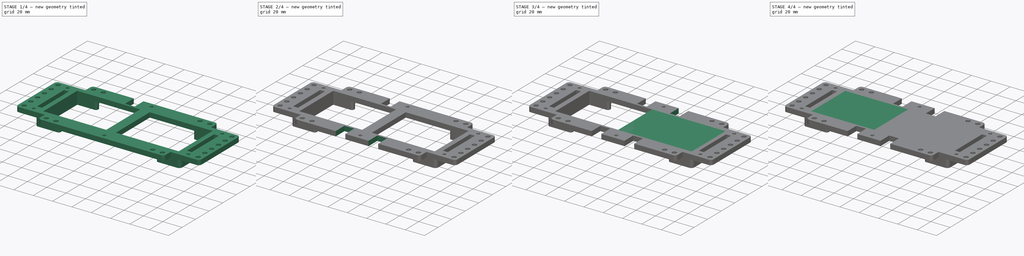
[diagram: build sequence overview — one tinted view per stage of 4, left to right]
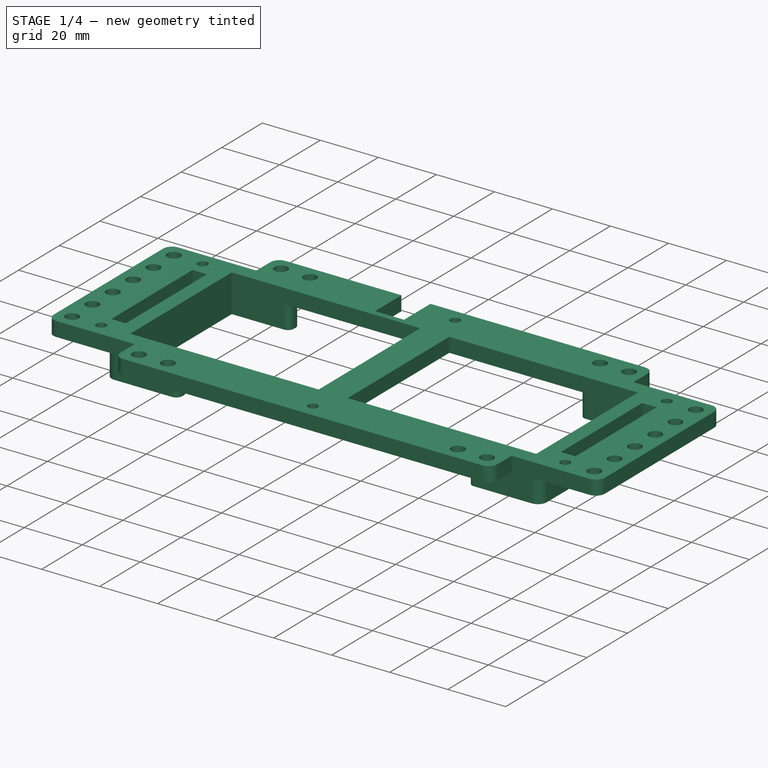
[diagram: stage 1 of 4 — iso view after this stage's code; geometry added in this stage tinted green]
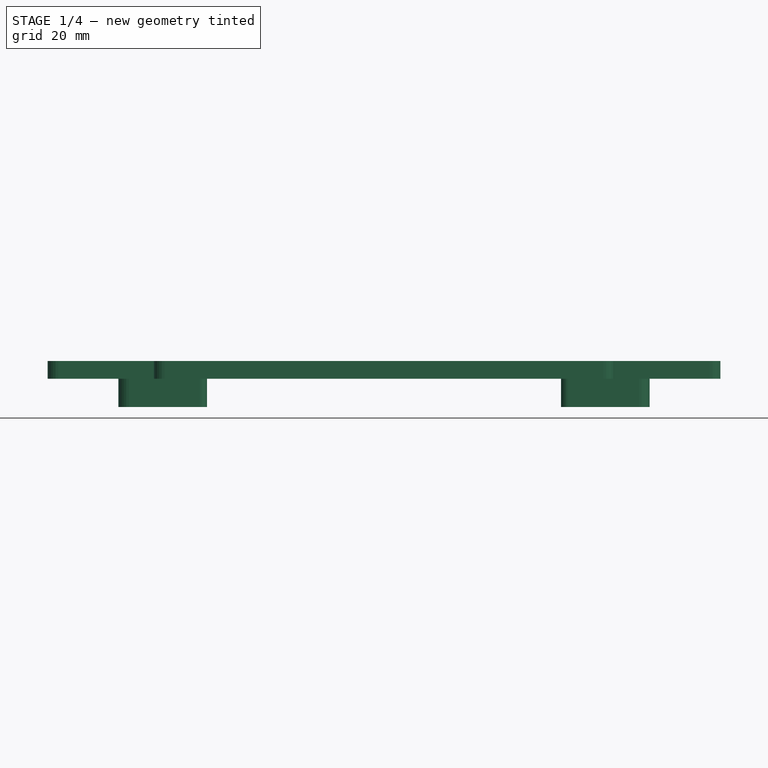
[diagram: stage 1 of 4 — front view after this stage's code; geometry added in this stage tinted green]
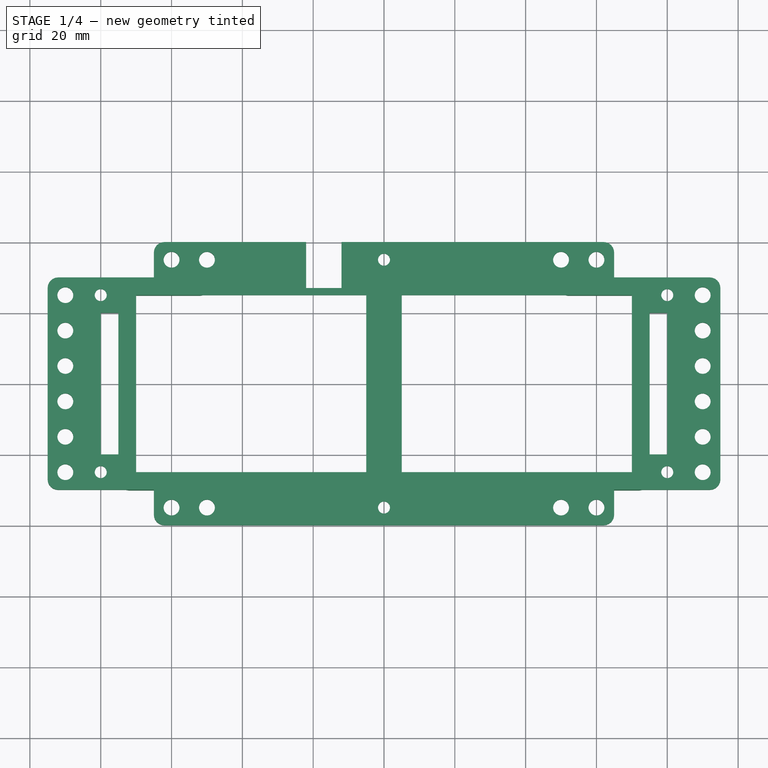
[diagram: stage 1 of 4 — top view after this stage's code; geometry added in this stage tinted green]
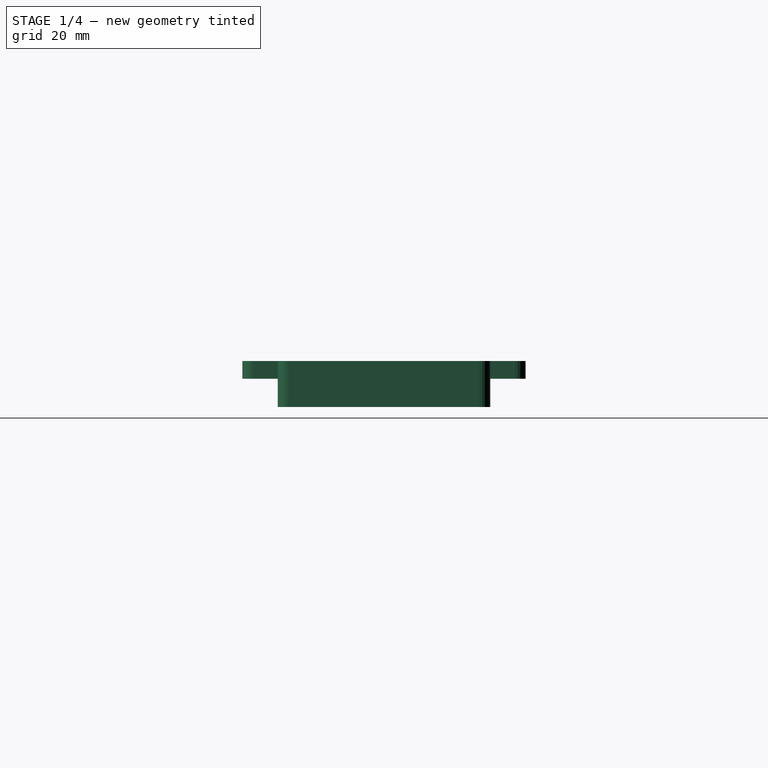
[diagram: stage 1 of 4 — right view after this stage's code; geometry added in this stage tinted green]
FCSTD DOCUMENT  (FreeCAD 1.0R39319 (Git))
Label: BaseFrame - edit
License: All rights reserved
LicenseURL: https://en.wikipedia.org/wiki/All_rights_reserved
objects: Part::Extrusion×4, Measure::MeasureLength×4, Sketcher::SketchObject×3, PartDesign::Pocket×2, PartDesign::LinearPattern×2, Part::Feature×1, PartDesign::FeatureBase×1, PartDesign::Body×1, App::DocumentObjectGroup×1
note: 24 computed .brp shape members not serialized (recipe doc carries the construction recipe); baked Part::Feature solids carry a one-line shape summary decoded from their .brp

FEATURE [PartDesign::FeatureBase] BaseFeature
  BaseFeature = -> ProtoTank_baseFrame002_solid
  Suppressed = false
FEATURE [Sketcher::SketchObject] Sketch002
  ArcFitTolerance = 1e-06
  AttachmentSupport = -> [BaseFeature]
  FullyConstrained = true
  MakeInternals = false
  MapMode = 5
  Placement = pos=(0,40,0) rot=(0,0.707107,0.707107;3.14159rad)
  sketch-geometry (8):
    g0: LineSegment [constr] StartX=0 StartY=0 StartZ=0 EndX=12 EndY=0 EndZ=0
    g1: LineSegment [constr] StartX=12 StartY=0 StartZ=0 EndX=12 EndY=5 EndZ=0
    g2: LineSegment [constr] StartX=12 StartY=5 StartZ=0 EndX=0 EndY=5 EndZ=0
    g3: LineSegment [constr] StartX=0 StartY=5 StartZ=0 EndX=0 EndY=0 EndZ=0
    g4: LineSegment StartX=12 StartY=0 StartZ=0 EndX=22 EndY=0 EndZ=0
    g5: LineSegment StartX=22 StartY=0 StartZ=0 EndX=22 EndY=5 EndZ=0
    g6: LineSegment StartX=22 StartY=5 StartZ=0 EndX=12 EndY=5 EndZ=0
    g7: LineSegment StartX=12 StartY=5 StartZ=0 EndX=12 EndY=0 EndZ=0
  constraints (22):
    c: Coincident(g0,g1)
    c: Coincident(g1,g2)
    c: Coincident(g2,g3)
    c: Coincident(g3,g0)
    c: Horizontal(g0)
    c: Horizontal(g2)
    c: Vertical(g1)
    c: Vertical(g3)
    c: Distance(g1,g3) = 12
    c: Distance(g0,g2) = 5
    c: Coincident(g0,g-1)
    c: Coincident(g4,g5)
    c: Coincident(g5,g6)
    c: Coincident(g6,g7)
    c: Coincident(g7,g4)
    c: Horizontal(g4)
    c: Horizontal(g6)
    c: Vertical(g5)
    c: Vertical(g7)
    c: Distance(g5,g7) = 10
    c: Distance(g4,g6) = 5
    c: Coincident(g4,g0)
FEATURE [PartDesign::Pocket] Pocket
  BaseFeature = -> BaseFeature
  Direction = (0,-1,2e-16)
  Length = 13
  Length2 = 5
  Profile = -> Sketch002
  ReferenceAxis = -> Sketch002 [N_Axis]
  Refine = true
  Suppressed = false
  Type = 0
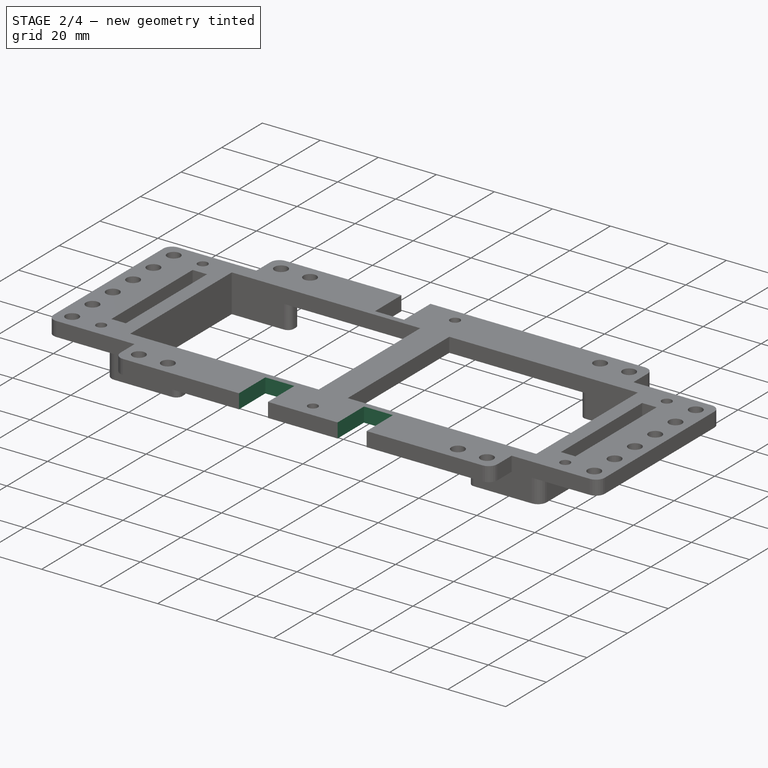
[diagram: stage 2 of 4 — iso view after this stage's code; geometry added in this stage tinted green]
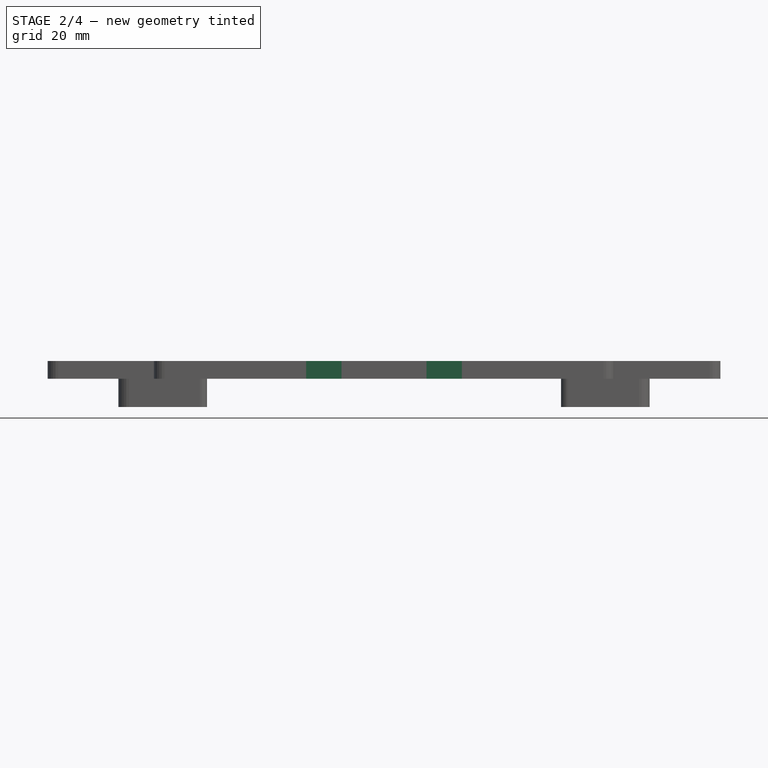
[diagram: stage 2 of 4 — front view after this stage's code; geometry added in this stage tinted green]
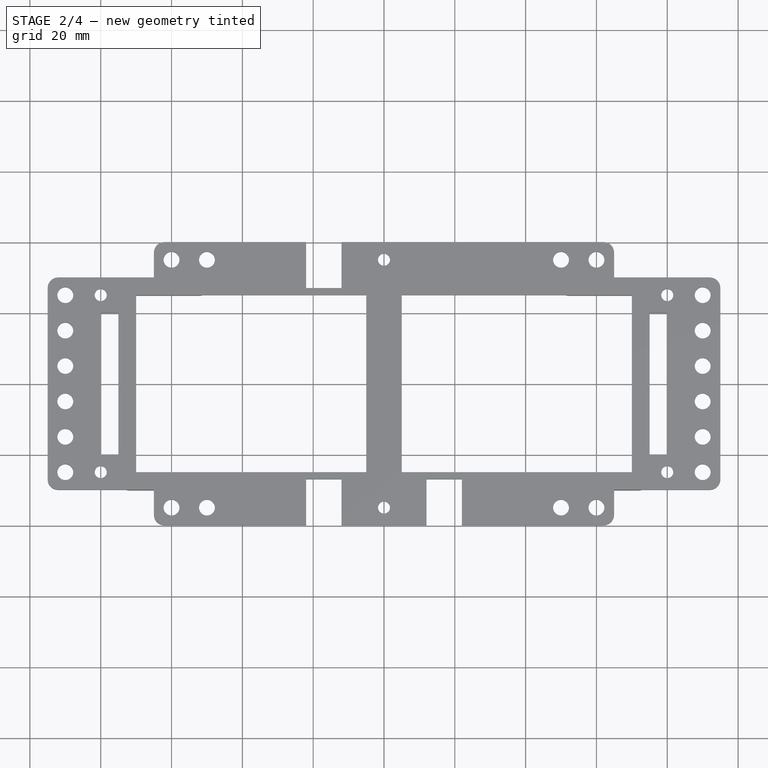
[diagram: stage 2 of 4 — top view after this stage's code; geometry added in this stage tinted green]
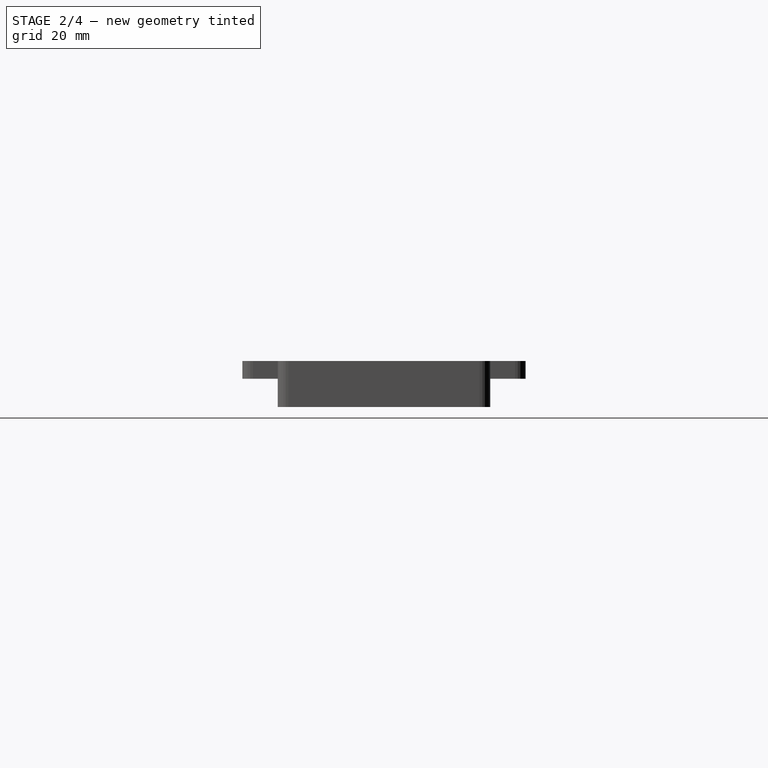
[diagram: stage 2 of 4 — right view after this stage's code; geometry added in this stage tinted green]
FEATURE [PartDesign::Pocket] Pocket001
  BaseFeature = -> Pocket
  Direction = (0,1,-2e-16)
  Length = 13
  Length2 = 5
  Profile = -> Sketch
  ReferenceAxis = -> Sketch [N_Axis]
  Refine = true
  Suppressed = false
  Type = 0
FEATURE [PartDesign::LinearPattern] LinearPattern
  BaseFeature = -> Pocket001
  Direction = -> X_Axis
  Length = 34
  Mode = 0
  Occurrences = 2
  Offset = 34
  Originals = -> [Pocket001]
  Refine = true
  Suppressed = false
  TransformMode = 0
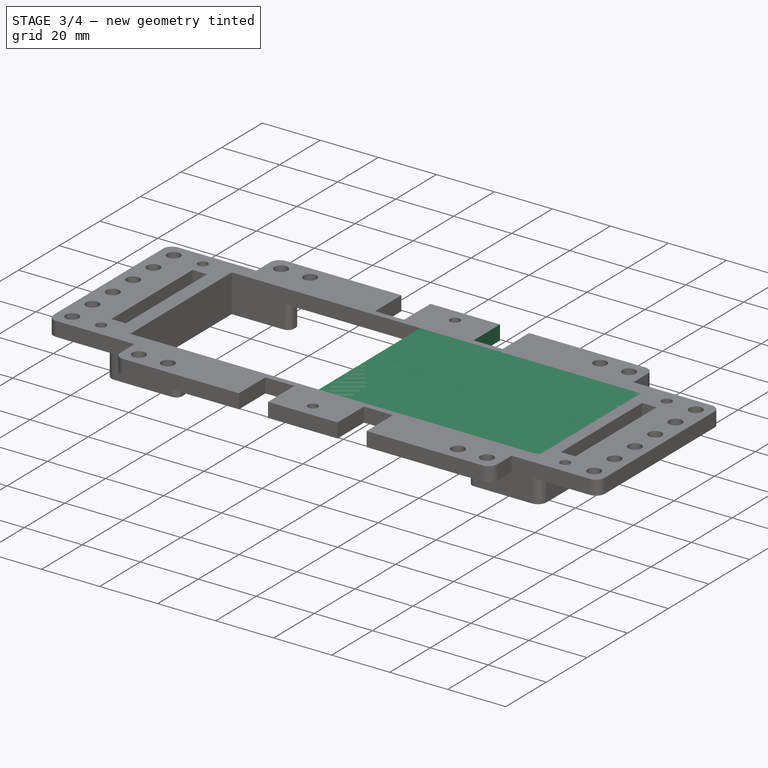
[diagram: stage 3 of 4 — iso view after this stage's code; geometry added in this stage tinted green]
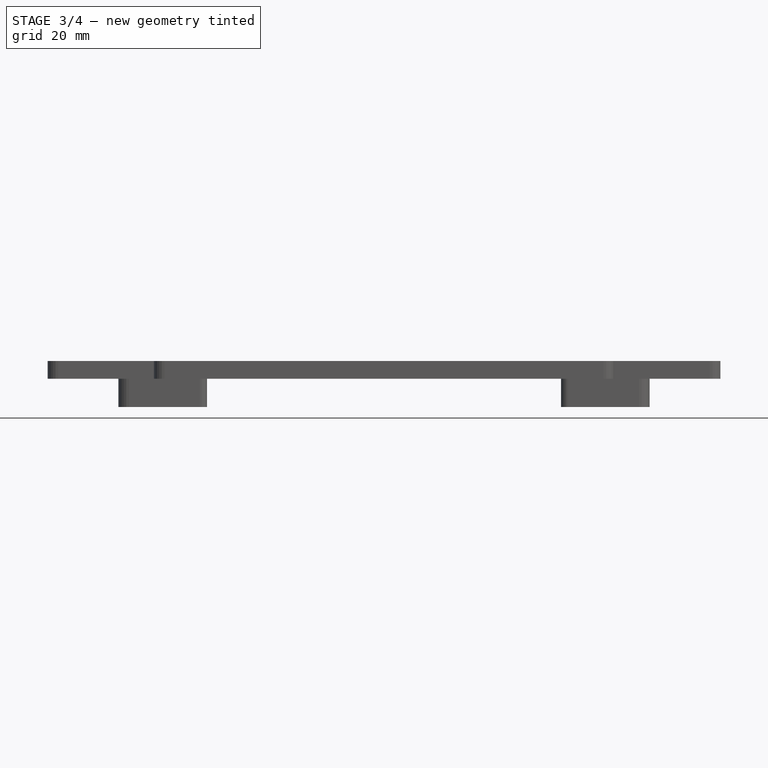
[diagram: stage 3 of 4 — front view after this stage's code; geometry added in this stage tinted green]
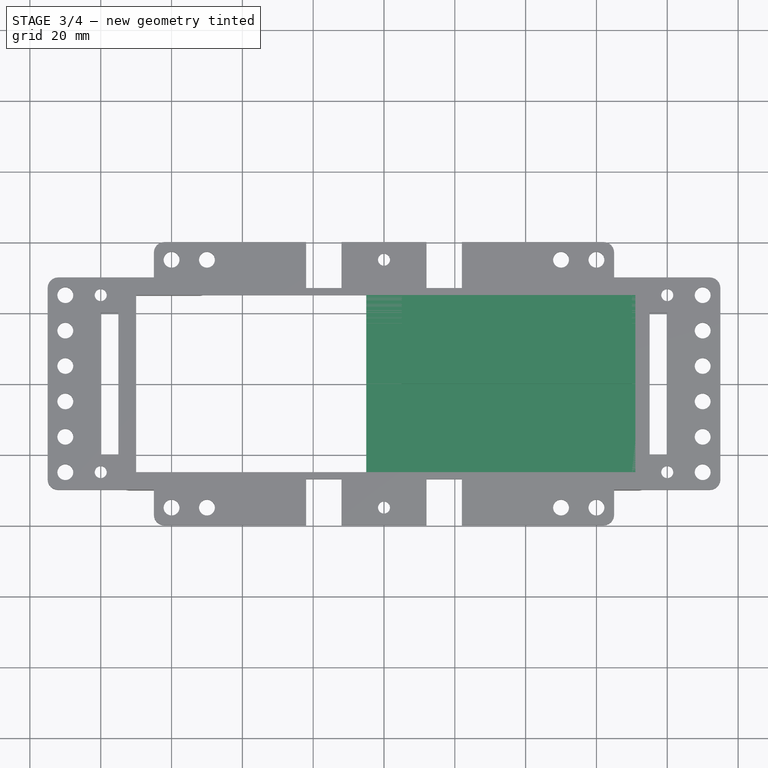
[diagram: stage 3 of 4 — top view after this stage's code; geometry added in this stage tinted green]
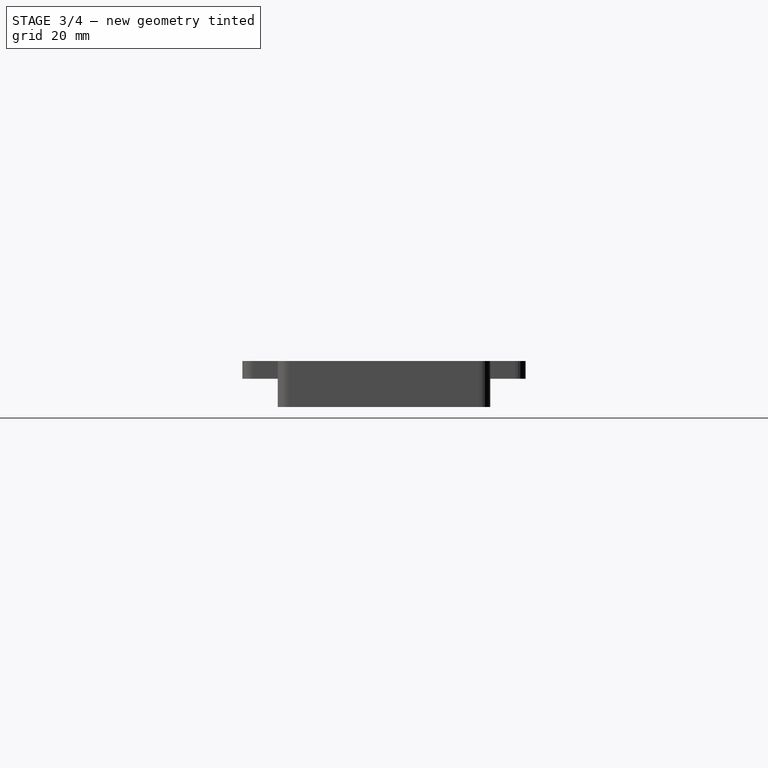
[diagram: stage 3 of 4 — right view after this stage's code; geometry added in this stage tinted green]
FEATURE [Part::Extrusion] Extrude002
  Base = -> Sketch001
  Dir = (-1,0,0)
  DirMode = 2
  FaceMakerClass = Part::FaceMakerBullseye
  FaceMakerMode = 3
  LengthFwd = 0
  LengthRev = 76
  Solid = true
  Symmetric = false
FEATURE [Part::Extrusion] Extrude003
  Base = -> Sketch001
  Dir = (-1,0,0)
  DirMode = 2
  FaceMakerClass = Part::FaceMakerBullseye
  FaceMakerMode = 3
  LengthFwd = 0
  LengthRev = 76
  Solid = true
  Symmetric = false
FEATURE [PartDesign::LinearPattern] LinearPattern001
  BaseFeature = -> LinearPattern
  Direction = -> X_Axis
  Length = 34
  Mode = 0
  Occurrences = 2
  Offset = 34
  Originals = -> [Pocket]
  Refine = true
  Suppressed = false
  TransformMode = 0
FEATURE [PartDesign::Body] Body
  AllowCompound = false
  BaseFeature = -> ProtoTank_baseFrame002_solid
  Group = -> [BaseFeature,Sketch,Sketch002,Pocket,Pocket001,LinearPattern,LinearPattern001]
  Origin = -> Origin
  Tip = -> LinearPattern001
FEATURE [Measure::MeasureLength] Length  label="Length: 24,00 mm"
  Elements = -> [Body]
  Length = 24
FEATURE [Measure::MeasureLength] Length001  label="Length001: 10,00 mm"
  Elements = -> [Body]
  Length = 10
FEATURE [Measure::MeasureLength] Length002  label="Length002: 24,00 mm"
  Elements = -> [Body]
  Length = 24
FEATURE [Measure::MeasureLength] Length003  label="Length003: 10,00 mm"
  Elements = -> [Body]
  Length = 10
FEATURE [App::DocumentObjectGroup] Measurements
  Group = -> [Length,Length001,Length002,Length003]
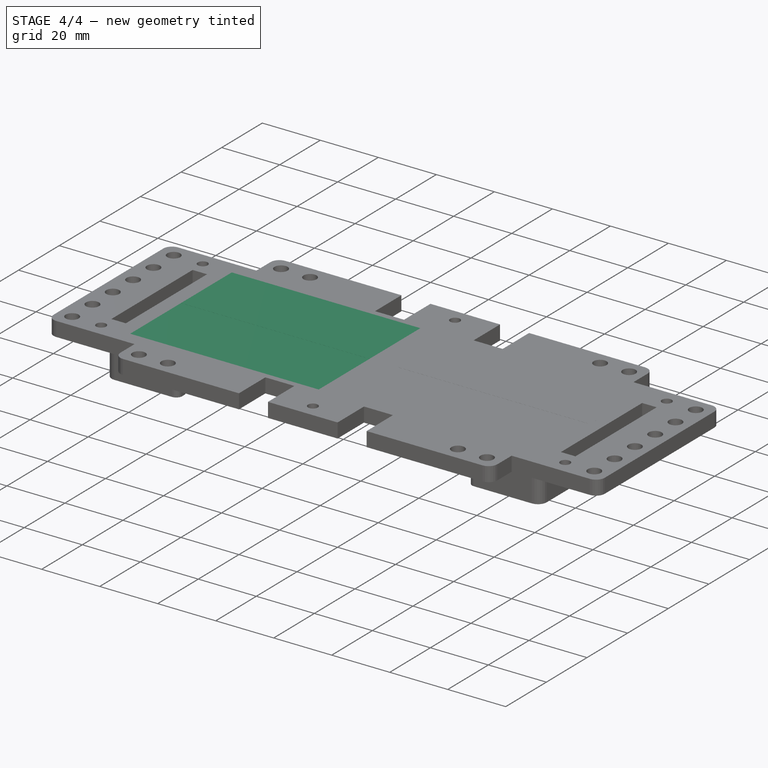
[diagram: stage 4 of 4 — iso view after this stage's code; geometry added in this stage tinted green]
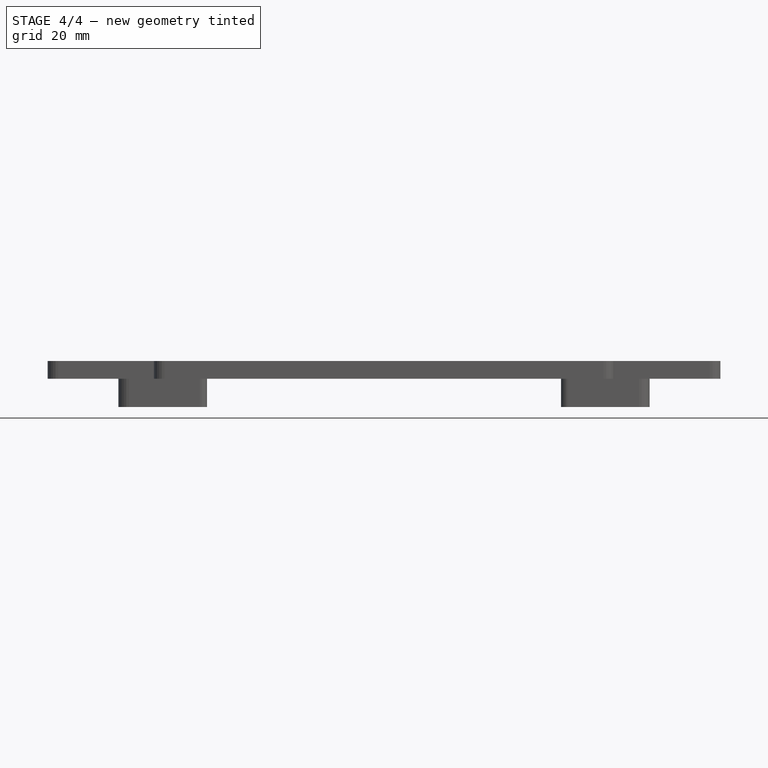
[diagram: stage 4 of 4 — front view after this stage's code; geometry added in this stage tinted green]
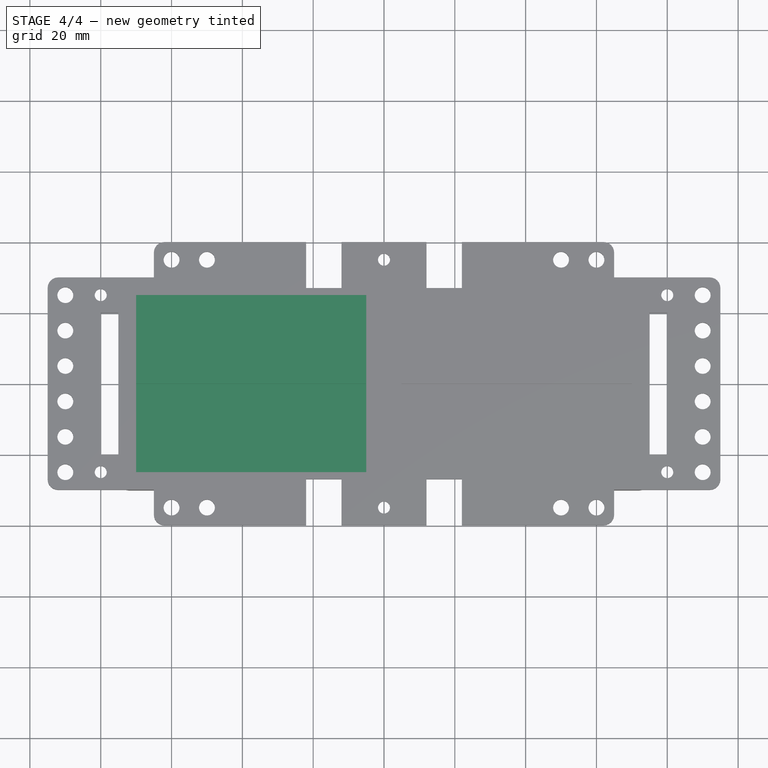
[diagram: stage 4 of 4 — top view after this stage's code; geometry added in this stage tinted green]
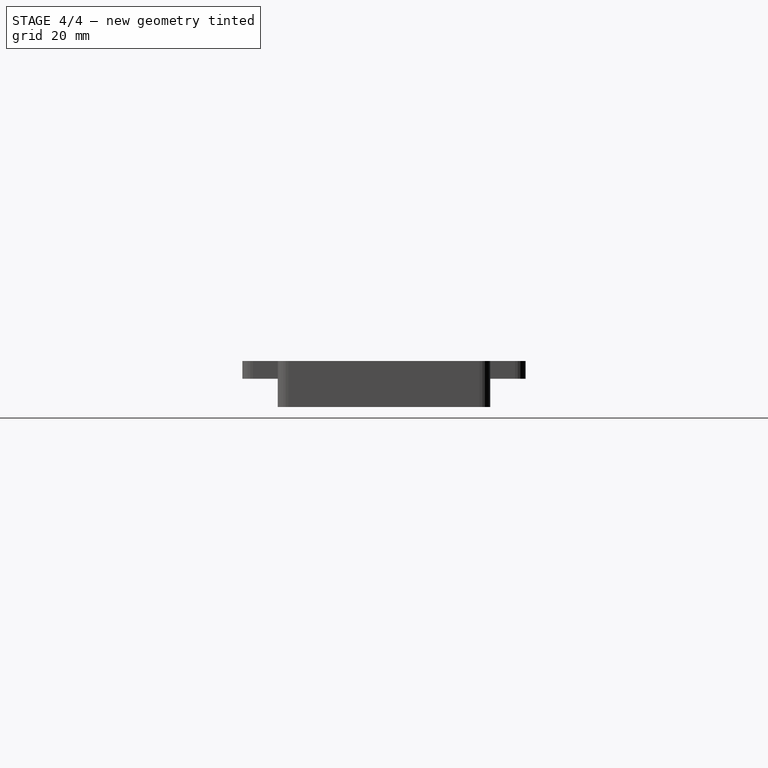
[diagram: stage 4 of 4 — right view after this stage's code; geometry added in this stage tinted green]
FEATURE [Part::Feature] ProtoTank_baseFrame002_solid  label="ProtoTank_baseFrame002 (Solid)"
  shape: bbox 190 x 80 x 13 mm, 3980 faces (baked)
FEATURE [Sketcher::SketchObject] Sketch  label="Sketch - left cutout"
  ArcFitTolerance = 1e-06
  AttachmentSupport = -> [ProtoTank_baseFrame002_solid]
  FullyConstrained = true
  MakeInternals = false
  MapMode = 5
  Placement = pos=(0,-40,0) rot=(1,0,0;1.5708rad)
  sketch-geometry (8):
    g0: LineSegment [constr] StartX=0 StartY=0 StartZ=0 EndX=0 EndY=5 EndZ=0
    g1: LineSegment [constr] StartX=0 StartY=5 StartZ=0 EndX=-12 EndY=5 EndZ=0
    g2: LineSegment [constr] StartX=-12 StartY=5 StartZ=0 EndX=-12 EndY=0 EndZ=0
    g3: LineSegment [constr] StartX=-12 StartY=0 StartZ=0 EndX=0 EndY=0 EndZ=0
    g4: LineSegment StartX=-12 StartY=0 StartZ=0 EndX=-12 EndY=5 EndZ=0
    g5: LineSegment StartX=-12 StartY=5 StartZ=0 EndX=-22 EndY=5 EndZ=0
    g6: LineSegment StartX=-22 StartY=5 StartZ=0 EndX=-22 EndY=0 EndZ=0
    g7: LineSegment StartX=-22 StartY=0 StartZ=0 EndX=-12 EndY=0 EndZ=0
  constraints (22):
    c: Coincident(g0,g1)
    c: Coincident(g1,g2)
    c: Coincident(g2,g3)
    c: Coincident(g3,g0)
    c: Vertical(g0)
    c: Vertical(g2)
    c: Horizontal(g1)
    c: Horizontal(g3)
    c: Distance(g0,g2) = 12
    c: Distance(g1,g3) = 5
    c: Coincident(g0,g-1)
    c: Coincident(g4,g5)
    c: Coincident(g5,g6)
    c: Coincident(g6,g7)
    c: Coincident(g7,g4)
    c: Vertical(g4)
    c: Vertical(g6)
    c: Horizontal(g5)
    c: Horizontal(g7)
    c: Distance(g4,g6) = 10
    c: Distance(g5,g7) = 5
    c: Coincident(g4,g2)
FEATURE [Sketcher::SketchObject] Sketch001  label="Sketch - inner strength"
  ArcFitTolerance = 1e-06
  AttachmentSupport = -> [ProtoTank_baseFrame002_solid]
  FullyConstrained = false
  MakeInternals = false
  MapMode = 5
  Placement = pos=(-5,0,0) rot=(0.57735,-0.57735,-0.57735;2.0944rad)
  sketch-geometry (8):
    g0: LineSegment StartX=0 StartY=0 StartZ=0 EndX=25 EndY=0 EndZ=0
    g1: LineSegment StartX=25 StartY=0 StartZ=0 EndX=25 EndY=5 EndZ=0
    g2: LineSegment StartX=25 StartY=5 StartZ=0 EndX=0 EndY=5 EndZ=0
    g3: LineSegment StartX=0 StartY=5 StartZ=0 EndX=0 EndY=0 EndZ=0
    g4: LineSegment StartX=-0.038002 StartY=0 StartZ=0 EndX=-0.038002 EndY=5 EndZ=0
    g5: LineSegment StartX=-0.038002 StartY=5 StartZ=0 EndX=-25.038 EndY=5 EndZ=0
    g6: LineSegment StartX=-25.038 StartY=5 StartZ=0 EndX=-25.038 EndY=0 EndZ=0
    g7: LineSegment StartX=-25.038 StartY=0 StartZ=0 EndX=-0.038002 EndY=0 EndZ=0
  constraints (22):
    c: Coincident(g0,g1)
    c: Coincident(g1,g2)
    c: Coincident(g2,g3)
    c: Coincident(g3,g0)
    c: Horizontal(g0)
    c: Horizontal(g2)
    c: Vertical(g1)
    c: Vertical(g3)
    c: Distance(g1,g3) = 25
    c: Distance(g0,g2) = 5
    c: Coincident(g0,g-1)
    c: Coincident(g4,g5)
    c: Coincident(g5,g6)
    c: Coincident(g6,g7)
    c: Coincident(g7,g4)
    c: Vertical(g4)
    c: Vertical(g6)
    c: Horizontal(g5)
    c: Horizontal(g7)
    c: Distance(g4,g6) = 25
    c: Distance(g5,g7) = 5
    c: PointOnObject(g4,g-1)
FEATURE [Part::Extrusion] Extrude  label="Extrude - Inner Strength"
  Base = -> Sketch001
  Dir = (-1,0,0)
  DirMode = 2
  FaceMakerClass = Part::FaceMakerBullseye
  FaceMakerMode = 3
  LengthFwd = 65
  LengthRev = 0
  Solid = true
  Symmetric = false
FEATURE [Part::Extrusion] Extrude001
  Base = -> Sketch001
  Dir = (-1,0,0)
  DirMode = 2
  FaceMakerClass = Part::FaceMakerBullseye
  FaceMakerMode = 3
  LengthFwd = 65
  LengthRev = 0
  Solid = true
  Symmetric = false
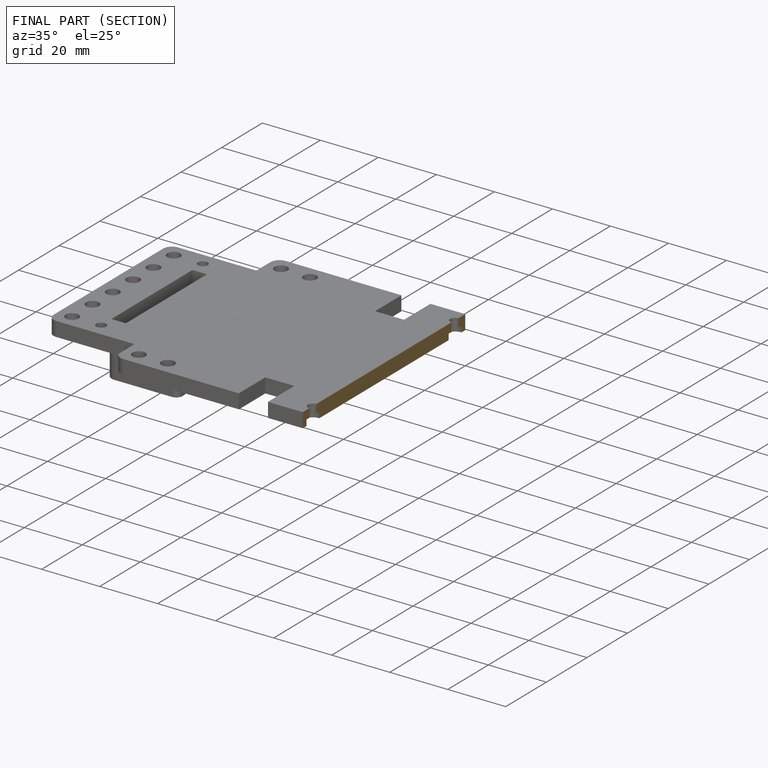
[diagram: finished part — half-section view (interior)]
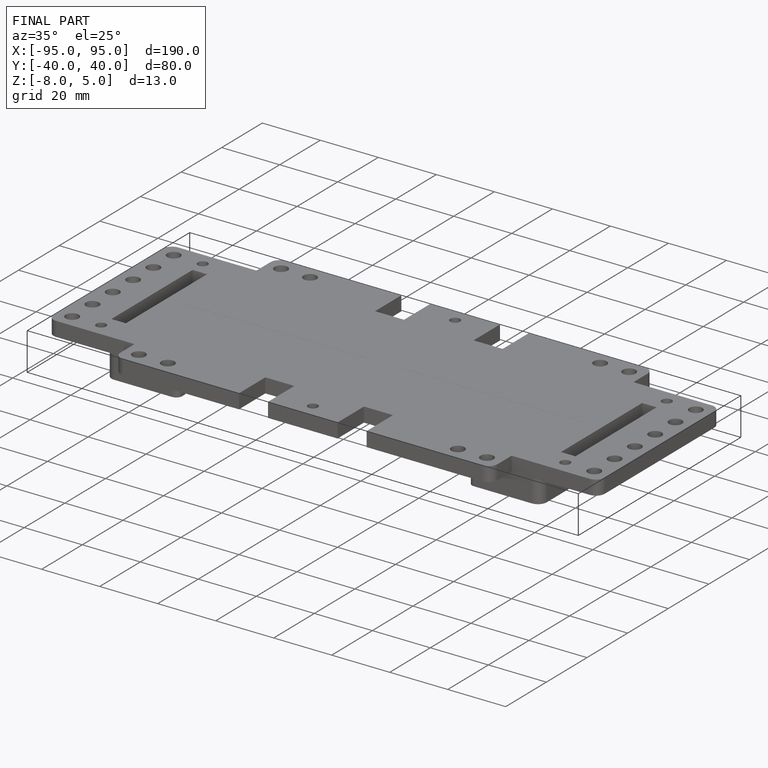
[diagram: finished part — iso view with bounding-box wireframe]
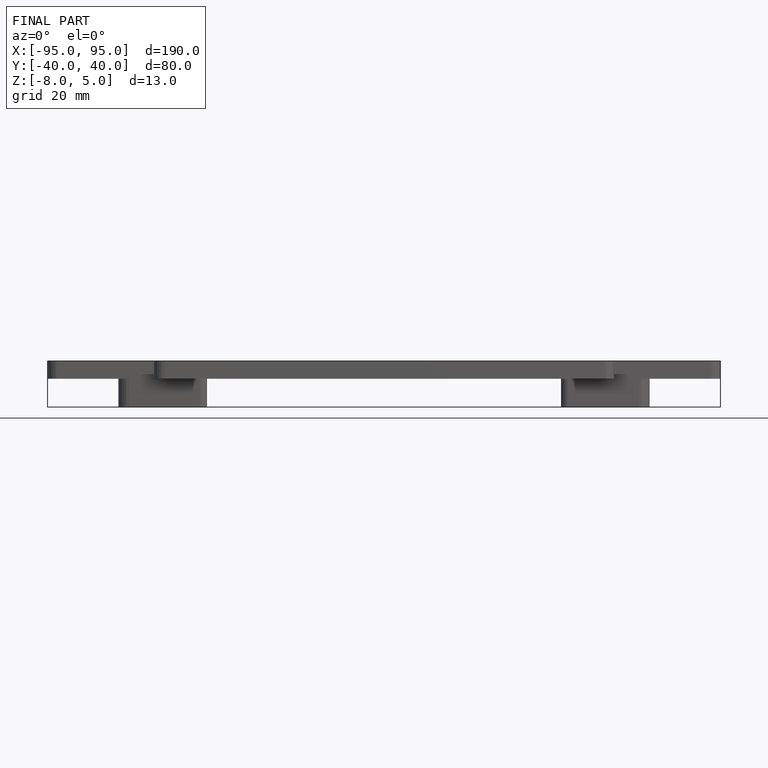
[diagram: finished part — front view with bounding-box wireframe]
